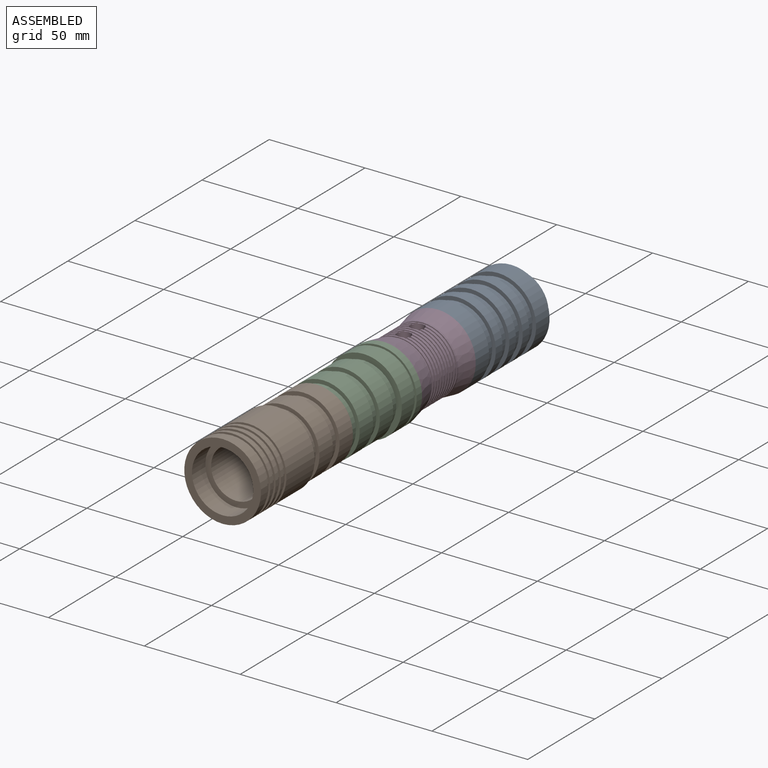
[diagram: assembled view]
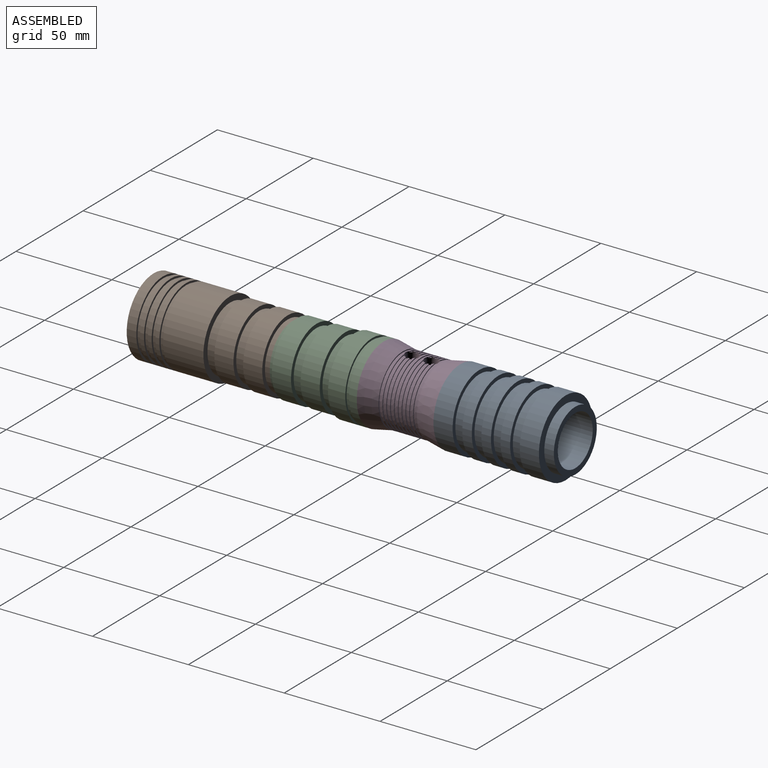
[diagram: assembled view, second angle]
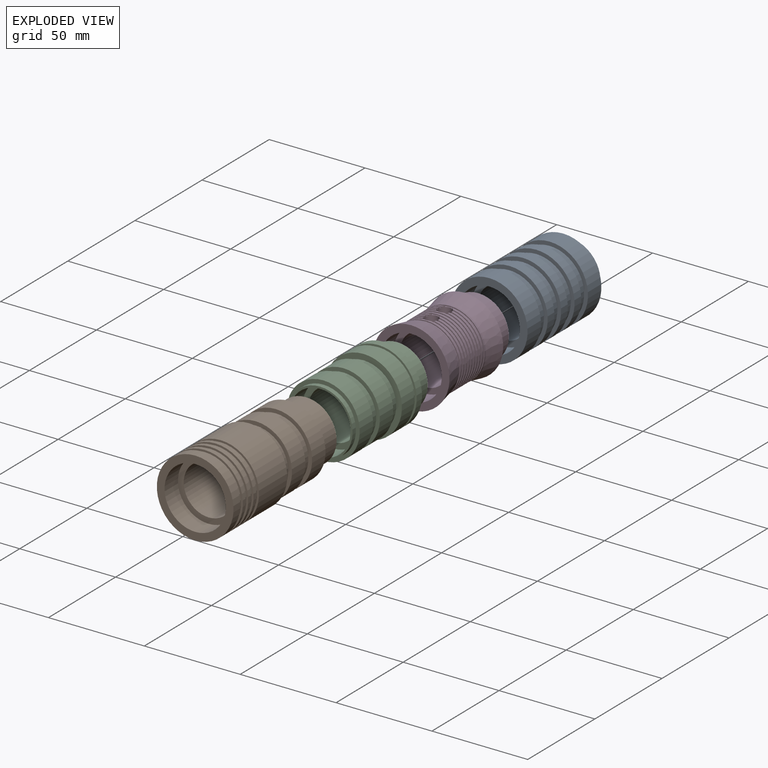
[diagram: exploded view]
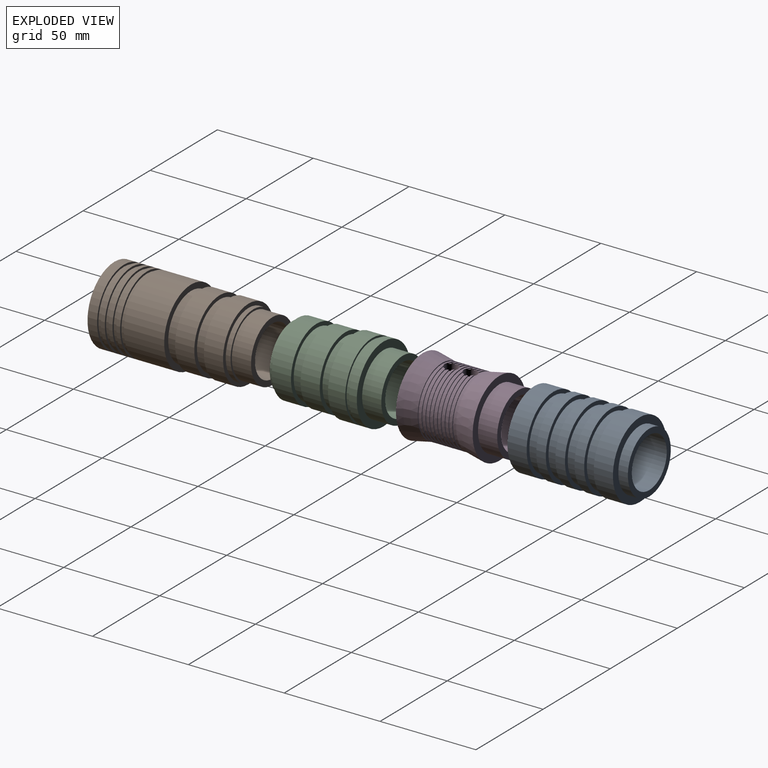
[diagram: exploded view, second angle]
ASSEMBLY  parts=4 mates=6
PART A: 24 faces, bbox 40x60x40 mm
  f0: cylinder r=16mm len=32mm, axis (0,-1,0), area 1005.3mm2, adj f1,f23
  f1: plane 40x40mm, normal (0,-1,0), area 452.4mm2, adj f0,f2
  f2: cylinder r=20mm len=40mm, axis (0,-1,0), area 1256.6mm2, adj f1,f3
  f3: plane 40x40mm, normal (0,1,0), area 238.8mm2, adj f2,f4
  f4: cylinder r=18mm len=36mm, axis (0,-1,0), area 565.5mm2, adj f3,f5
  f5: plane 40x40mm, normal (0,-1,0), area 238.8mm2, adj f4,f6
  f6: cylinder r=20mm len=40mm, axis (0,-1,0), area 628.3mm2, adj f5,f7
  f7: plane 40x40mm, normal (0,1,0), area 238.8mm2, adj f6,f8
  f8: cylinder r=18mm len=36mm, axis (0,-1,0), area 565.5mm2, adj f7,f9
  f9: plane 40x40mm, normal (0,-1,0), area 238.8mm2, adj f8,f10
  f10: cylinder r=20mm len=40mm, axis (0,-1,0), area 628.3mm2, adj f9,f11
  f11: plane 40x40mm, normal (0,1,0), area 238.8mm2, adj f10,f12
  f12: cylinder r=18mm len=36mm, axis (0,-1,0), area 565.5mm2, adj f11,f13
  f13: plane 40x40mm, normal (0,-1,0), area 238.8mm2, adj f12,f14
  f14: cylinder r=20mm len=40mm, axis (0,-1,0), area 628.3mm2, adj f13,f15
  f15: plane 40x40mm, normal (0,1,0), area 238.8mm2, adj f14,f16
  f16: cylinder r=18mm len=36mm, axis (0,-1,0), area 565.5mm2, adj f15,f17
  f17: plane 40x40mm, normal (0,-1,0), area 238.8mm2, adj f16,f18
  f18: cylinder r=20mm len=40mm, axis (0,-1,0), area 1256.6mm2, adj f17,f19
  f19: plane 40x40mm, normal (0,1,0), area 452.4mm2, adj f18,f20
  f20: cylinder r=16mm len=32mm, axis (0,-1,0), area 502.7mm2, adj f19,f21
  f21: plane 32x32mm, normal (0,1,0), area 273.3mm2, adj f20,f22
  f22: cylinder r=13mm len=50mm, axis (0,-1,0), area 4084.1mm2, adj f21,f23
  f23: plane 32x32mm, normal (0,-1,0), area 273.3mm2, adj f0,f22
PART B: 34 faces, bbox 40x82.5x40 mm
  f0: cylinder r=20mm len=40mm, axis (0,-1,0), area 628.3mm2, adj f1,f33
  f1: plane 40x40mm, normal (0,1,0), area 122.5mm2, adj f0,f2
  f2: cylinder r=19mm len=38mm, axis (0,-1,0), area 238.8mm2, adj f1,f3
  f3: plane 40x40mm, normal (0,-1,0), area 122.5mm2, adj f2,f4
  f4: cylinder r=20mm len=40mm, axis (0,-1,0), area 251.3mm2, adj f3,f5
  f5: plane 40x40mm, normal (0,1,0), area 122.5mm2, adj f4,f6
  f6: cylinder r=19mm len=38mm, axis (0,-1,0), area 238.8mm2, adj f5,f7
  f7: plane 40x40mm, normal (0,-1,0), area 122.5mm2, adj f6,f8
  f8: cylinder r=20mm len=40mm, axis (0,-1,0), area 251.3mm2, adj f7,f9
  f9: plane 40x40mm, normal (0,1,0), area 122.5mm2, adj f8,f10
  f10: cylinder r=19mm len=38mm, axis (0,-1,0), area 238.8mm2, adj f9,f11
  f11: plane 40x40mm, normal (0,-1,0), area 122.5mm2, adj f10,f12
  f12: cylinder r=20mm len=40mm, axis (0,-1,0), area 251.3mm2, adj f11,f13
  f13: plane 40x40mm, normal (0,1,0), area 122.5mm2, adj f12,f14
  f14: cylinder r=19mm len=38mm, axis (0,-1,0), area 238.8mm2, adj f13,f15
  f15: plane 40x40mm, normal (0,-1,0), area 122.5mm2, adj f14,f16
  f16: cylinder r=20mm len=40mm, axis (0,-1,0), area 2638.9mm2, adj f15,f17
  f17: plane 40x40mm, normal (0,1,0), area 348.7mm2, adj f16,f18
  f18: cylinder r=17mm len=34mm, axis (0,-1,0), area 534.1mm2, adj f17,f19
  f19: plane 38x38mm, normal (0,-1,0), area 226.2mm2, adj f18,f20
  f20: cylinder r=19mm len=38mm, axis (0,-1,0), area 1193.8mm2, adj f19,f21
  f21: plane 38x38mm, normal (0,1,0), area 226.2mm2, adj f20,f22
  f22: cylinder r=17mm len=34mm, axis (0,-1,0), area 534.1mm2, adj f21,f23
  f23: plane 38x38mm, normal (0,-1,0), area 226.2mm2, adj f22,f24
  f24: cylinder r=19mm len=38mm, axis (0,-1,0), area 1193.8mm2, adj f23,f25
  f25: plane 38x38mm, normal (0,1,0), area 226.2mm2, adj f24,f26
  f26: cylinder r=17mm len=34mm, axis (0,-1,0), area 267mm2, adj f25,f27
  f27: plane 34x34mm, normal (0,1,0), area 103.7mm2, adj f26,f28
  f28: cylinder r=16mm len=32mm, axis (0,-1,0), area 1005.3mm2, adj f27,f29
  f29: plane 32x32mm, normal (0,1,0), area 273.3mm2, adj f28,f30
  f30: cylinder r=13mm len=72.5mm, axis (0,-1,0), area 5921.9mm2, adj f29,f31
  f31: plane 32x32mm, normal (0,-1,0), area 273.3mm2, adj f30,f32
  f32: cylinder r=16mm len=32mm, axis (0,-1,0), area 1005.3mm2, adj f31,f33
  f33: plane 40x40mm, normal (0,-1,0), area 452.4mm2, adj f0,f32
PART C: 22 faces, bbox 40x57.5x40 mm
  f0: cylinder r=17mm len=34mm, axis (0,-1,0), area 267mm2, adj f1,f21
  f1: plane 38x38mm, normal (0,-1,0), area 226.2mm2, adj f0,f2
  f2: cylinder r=19mm len=38mm, axis (0,-1,0), area 1193.8mm2, adj f1,f3
  f3: plane 38x38mm, normal (0,1,0), area 226.2mm2, adj f2,f4
  f4: cylinder r=17mm len=34mm, axis (0,-1,0), area 534.1mm2, adj f3,f5
  f5: plane 38x38mm, normal (0,-1,0), area 226.2mm2, adj f4,f6
  f6: cylinder r=19mm len=38mm, axis (0,-1,0), area 1193.8mm2, adj f5,f7
  f7: plane 38x38mm, normal (0,1,0), area 226.2mm2, adj f6,f8
  f8: cylinder r=17mm len=34mm, axis (0,-1,0), area 534.1mm2, adj f7,f9
  f9: plane 40x40mm, normal (0,-1,0), area 348.7mm2, adj f8,f10
  f10: cylinder r=20mm len=40mm, axis (0,-1,0), area 1131mm2, adj f9,f11
  f11: plane 40x40mm, normal (0,1,0), area 122.5mm2, adj f10,f12
  f12: cylinder r=19mm len=38mm, axis (0,-1,0), area 238.8mm2, adj f11,f13
  f13: plane 40x40mm, normal (0,-1,0), area 122.5mm2, adj f12,f14
  f14: cylinder r=20mm len=40mm, axis (0,-1,0), area 502.7mm2, adj f13,f15
  f15: plane 40x40mm, normal (0,1,0), area 452.4mm2, adj f14,f16
  f16: cylinder r=16mm len=32mm, axis (0,-1,0), area 1005.3mm2, adj f15,f17
  f17: plane 32x32mm, normal (0,1,0), area 273.3mm2, adj f16,f18
  f18: cylinder r=13mm len=47.5mm, axis (0,-1,0), area 3879.9mm2, adj f17,f19
  f19: plane 32x32mm, normal (0,-1,0), area 273.3mm2, adj f18,f20
  f20: cylinder r=16mm len=32mm, axis (0,-1,0), area 1005.3mm2, adj f19,f21
  f21: plane 34x34mm, normal (0,-1,0), area 103.7mm2, adj f0,f20
PART D: 51 faces, bbox 40x50x40 mm
  f0: cylinder r=13mm len=40mm, axis (0,-1,0), area 3189.7mm2, adj f45,f48,f49,f50
  f1: plane 36x35.91mm, normal (0,1,0), area 54mm2, adj f2,f3,f50
  f2: cylinder r=17.5mm len=35mm, axis (0,1,0), area 108.7mm2, adj f1,f39,f50
  f3: cylinder r=18mm len=36mm, axis (0,1,0), area 108.3mm2, adj f1,f5,f50
  f4: plane 36x35.68mm, normal (0,1,0), area 52.4mm2, adj f6,f7,f50
  f5: plane 36x35.77mm, normal (0,-1,0), area 52.9mm2, adj f3,f6,f50
  f6: cylinder r=17.5mm len=35mm, axis (0,1,0), area 103.6mm2, adj f4,f5,f50
  f7: cylinder r=18mm len=36mm, axis (0,1,0), area 106.2mm2, adj f4,f9,f50
  f8: plane 36x35.68mm, normal (0,1,0), area 52.4mm2, adj f10,f11,f50
  f9: plane 36x35.66mm, normal (0,-1,0), area 52.2mm2, adj f7,f10,f50
  f10: cylinder r=17.5mm len=35mm, axis (0,1,0), area 103mm2, adj f8,f9,f50
  f11: cylinder r=18mm len=36mm, axis (0,1,0), area 106.8mm2, adj f8,f13,f50
  f12: plane 36x35.91mm, normal (0,1,0), area 54mm2, adj f14,f15,f50
  f13: plane 36x35.77mm, normal (0,-1,0), area 52.9mm2, adj f11,f14,f50
  f14: cylinder r=17.5mm len=35mm, axis (0,1,0), area 105.1mm2, adj f12,f13,f50
  f15: cylinder r=18mm len=36mm, axis (0,1,0), area 111.9mm2, adj f12,f41,f50
  f16: cylinder r=18mm len=36mm, axis (0,1,0), area 108.3mm2, adj f17,f20,f49
  f17: plane 36x35.91mm, normal (0,1,0), area 54mm2, adj f16,f18,f49
  f18: cylinder r=17.5mm len=35mm, axis (0,1,0), area 108.7mm2, adj f17,f32,f49
  f19: plane 36x35.68mm, normal (0,1,0), area 52.4mm2, adj f21,f22,f49
  f20: plane 36x35.77mm, normal (0,-1,0), area 52.9mm2, adj f16,f21,f49
  f21: cylinder r=17.5mm len=35mm, axis (0,1,0), area 103.6mm2, adj f19,f20,f49
  f22: cylinder r=18mm len=36mm, axis (0,1,0), area 106.2mm2, adj f19,f24,f49
  f23: plane 36x35.68mm, normal (0,1,0), area 52.4mm2, adj f25,f26,f49
  f24: plane 36x35.66mm, normal (0,-1,0), area 52.2mm2, adj f22,f25,f49
  f25: cylinder r=17.5mm len=35mm, axis (0,1,0), area 103mm2, adj f23,f24,f49
  f26: cylinder r=18mm len=36mm, axis (0,1,0), area 106.8mm2, adj f23,f28,f49
  f27: plane 36x35.91mm, normal (0,1,0), area 54mm2, adj f29,f30,f49
  f28: plane 36x35.77mm, normal (0,-1,0), area 52.9mm2, adj f26,f29,f49
  f29: cylinder r=17.5mm len=35mm, axis (0,1,0), area 105.1mm2, adj f27,f28,f49
  f30: cylinder r=18mm len=36mm, axis (0,1,0), area 111.9mm2, adj f27,f36,f49
  f31: plane 40x40mm, normal (0,1,0), area 452.4mm2, adj f33,f46
  f32: plane 36x36mm, normal (0,-1,0), area 55.8mm2, adj f18,f34
  f33: cone r=20mm half-angle=11.3deg, axis (0,1,0), area 1217.4mm2, adj f31,f34
  f34: cylinder r=18mm len=36mm, axis (0,1,0), area 113.1mm2, adj f32,f33
  f35: plane 36x36mm, normal (0,1,0), area 55.8mm2, adj f37,f38
  f36: plane 36x36mm, normal (0,-1,0), area 55.8mm2, adj f30,f37
  f37: cylinder r=17.5mm len=35mm, axis (0,1,0), area 110mm2, adj f35,f36
  f38: cylinder r=18mm len=36mm, axis (0,1,0), area 113.1mm2, adj f35,f39
  f39: plane 36x36mm, normal (0,-1,0), area 55.8mm2, adj f2,f38
  f40: plane 36x36mm, normal (0,1,0), area 55.8mm2, adj f42,f44
  f41: plane 36x36mm, normal (0,-1,0), area 55.8mm2, adj f15,f42
  f42: cylinder r=17.5mm len=35mm, axis (0,1,0), area 110mm2, adj f40,f41
  f43: plane 40x40mm, normal (0,-1,0), area 452.4mm2, adj f44,f47
  f44: cone r=18mm half-angle=11.3deg, axis (0,-1,0), area 1217.4mm2, adj f40,f43
  f45: plane 32x32mm, normal (0,1,0), area 273.3mm2, adj f0,f46
  f46: cylinder r=16mm len=32mm, axis (0,-1,0), area 1005.3mm2, adj f31,f45
  f47: cylinder r=16mm len=32mm, axis (0,-1,0), area 1005.3mm2, adj f43,f48
  f48: plane 32x32mm, normal (0,-1,0), area 273.3mm2, adj f0,f47
  f49: cylinder r=3.5mm len=7mm, axis (0,0,-1), area 105.8mm2, adj f0,f16,f17,f18,f19,f20,f21,f22
  f50: cylinder r=3.5mm len=7mm, axis (0,0,-1), area 105.8mm2, adj f0,f1,f2,f3,f4,f5,f6,f7
PLACE A t=(10.78,174.35,25.44)mm
PLACE B t=(10.78,14.35,25.44)mm
PLACE C t=(10.78,86.85,25.44)mm
PLACE D t=(10.78,134.35,25.44)mm
MATE fastened B.f0 <-> C.f0  axis (0,1,0) through (10.78,86.85,25.44)mm
MATE fastened D.f0 <-> A.f0  axis (0,1,0) through (10.78,174.35,25.44)mm
MATE cylindrical D.f0 <-> A.f0  axis (0,-1,0) through (10.78,179.35,25.44)mm
MATE fastened C.f0 <-> D.f0  axis (0,1,0) through (10.78,134.35,25.44)mm
MATE cylindrical B.f0 <-> C.f0  axis (0,-1,0) through (10.78,91.85,25.44)mm
MATE cylindrical D.f0 <-> C.f0  axis (0,-1,0) through (10.78,134.35,25.44)mm
